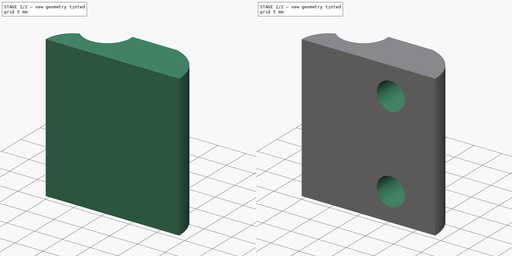
[diagram: build sequence overview — one tinted view per stage of 2, left to right]
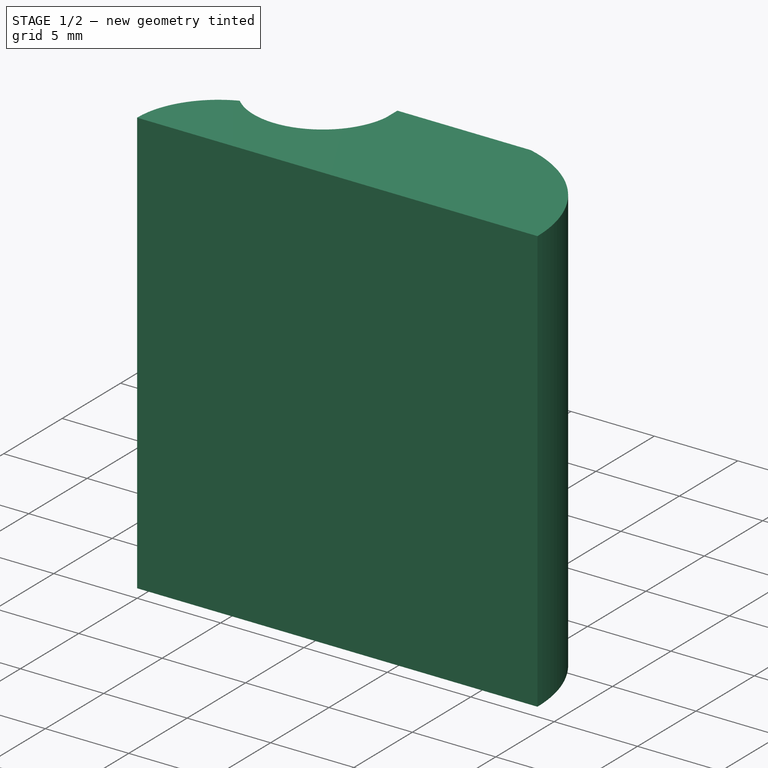
[diagram: stage 1 of 2 — iso view after this stage's code; geometry added in this stage tinted green]
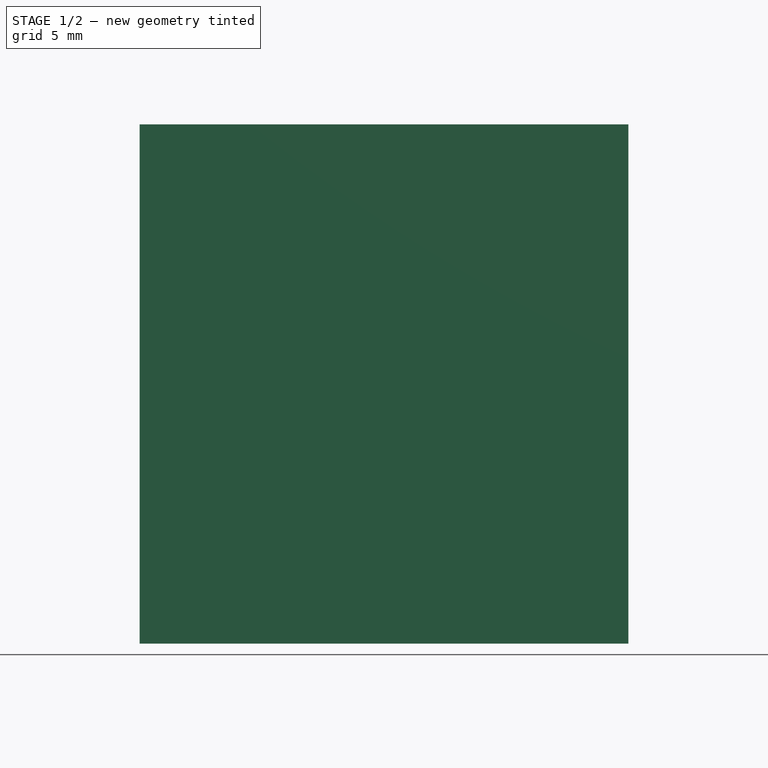
[diagram: stage 1 of 2 — front view after this stage's code; geometry added in this stage tinted green]
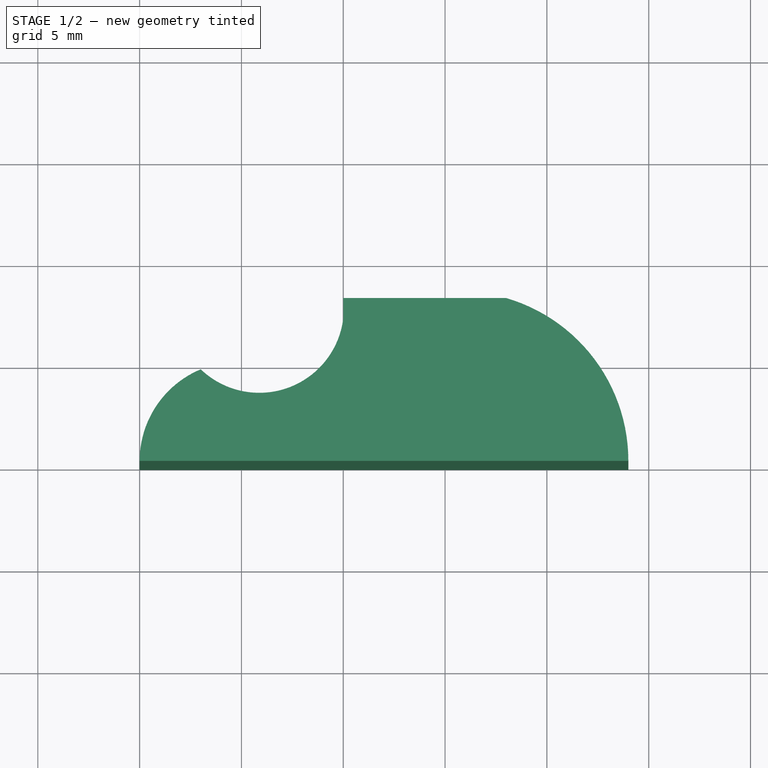
[diagram: stage 1 of 2 — top view after this stage's code; geometry added in this stage tinted green]
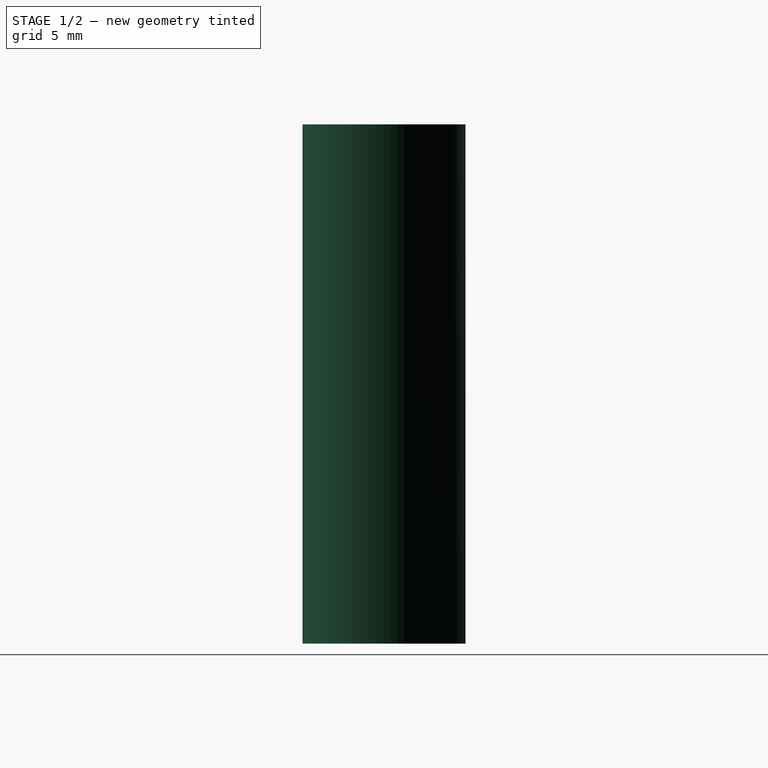
[diagram: stage 1 of 2 — right view after this stage's code; geometry added in this stage tinted green]
FCSTD DOCUMENT  (FreeCAD 0.16R5861 (Git))
Label: extruder_latch_v2.1
License: All rights reserved
LicenseURL: http://en.wikipedia.org/wiki/All_rights_reserved
objects: Sketcher::SketchObject×2, PartDesign::Pad×1, PartDesign::Pocket×1
note: 6 computed .brp shape members not serialized (recipe doc carries the construction recipe); baked Part::Feature solids carry a one-line shape summary decoded from their .brp

FEATURE [Sketcher::SketchObject] Sketch
  sketch-geometry (6):
    g0: LineSegment StartX=0 StartY=0 StartZ=0 EndX=24 EndY=0 EndZ=0
    g1: LineSegment StartX=10 StartY=8 StartZ=0 EndX=18 EndY=8 EndZ=0
    g2: ArcOfCircle CenterX=15.6667 CenterY=0 CenterZ=0 NormalX=0 NormalY=0 NormalZ=1 Radius=8.33333 StartAngle=0 EndAngle=1.287
    g3: ArcOfCircle CenterX=4.875 CenterY=0 CenterZ=0 NormalX=0 NormalY=0 NormalZ=1 Radius=4.875 StartAngle=1.96559 EndAngle=3.14159
    g4: LineSegment StartX=10 StartY=8 StartZ=0 EndX=10 EndY=7 EndZ=0
    g5: ArcOfCircle CenterX=5.875 CenterY=7.5 CenterZ=0 NormalX=0 NormalY=0 NormalZ=1 Radius=4.15519 StartAngle=3.94826 EndAngle=6.16256
  constraints (20):
    c: Coincident(g0,g-1)
    c: PointOnObject(g0,g-1)
    c: Horizontal(g1)
    c: Coincident(g2,g1)
    c: Coincident(g2,g0)
    c: Coincident(g3,g-1)
    c: DistanceY(g1,g0) = -8
    c: DistanceX(g-1,g0) = 24
    c: PointOnObject(g2,g0)
    c: DistanceX(g-1,g1) = 10
    c: DistanceX(g1,g1) = -8
    c: PointOnObject(g3,g0)
    c: DistanceY(g3,g3) = -4.5
    c: Coincident(g4,g1)
    c: Vertical(g4)
    c: Coincident(g5,g4)
    c: Coincident(g3,g5)
    c: DistanceX(g-1,g3) = 3
    c: DistanceY(g1,g4) = -1
    c: DistanceX(g5,g3) = -1
FEATURE [PartDesign::Pad] Pad
  Length = 25.5
  Length2 = 100
  Sketch = -> Sketch
  Type = 0
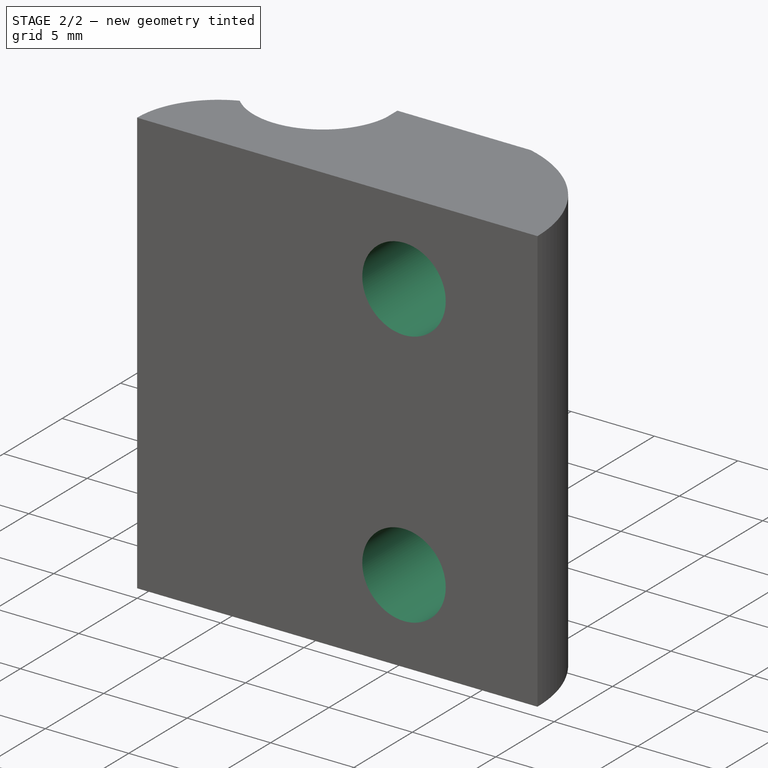
[diagram: stage 2 of 2 — iso view after this stage's code; geometry added in this stage tinted green]
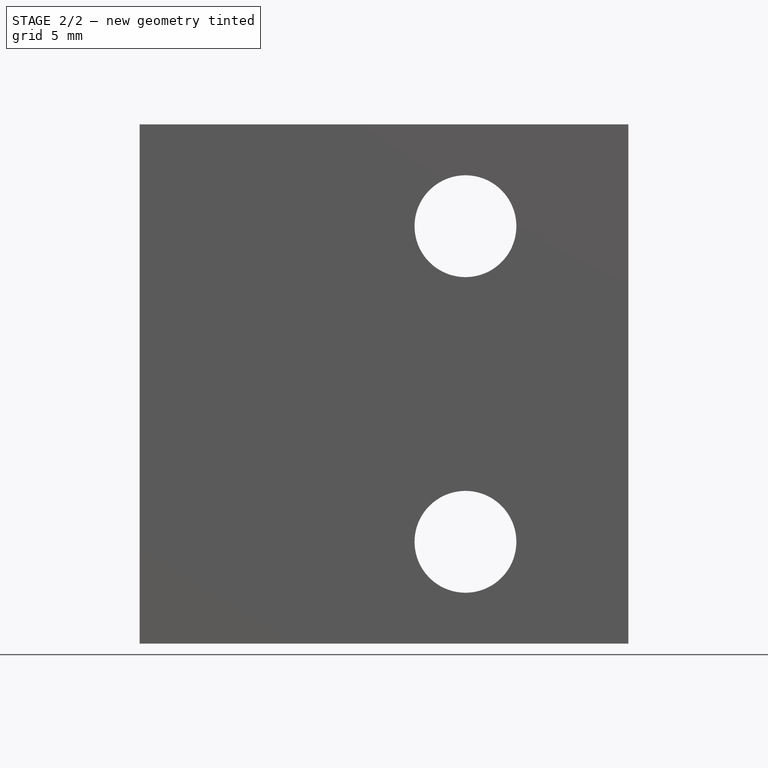
[diagram: stage 2 of 2 — front view after this stage's code; geometry added in this stage tinted green]
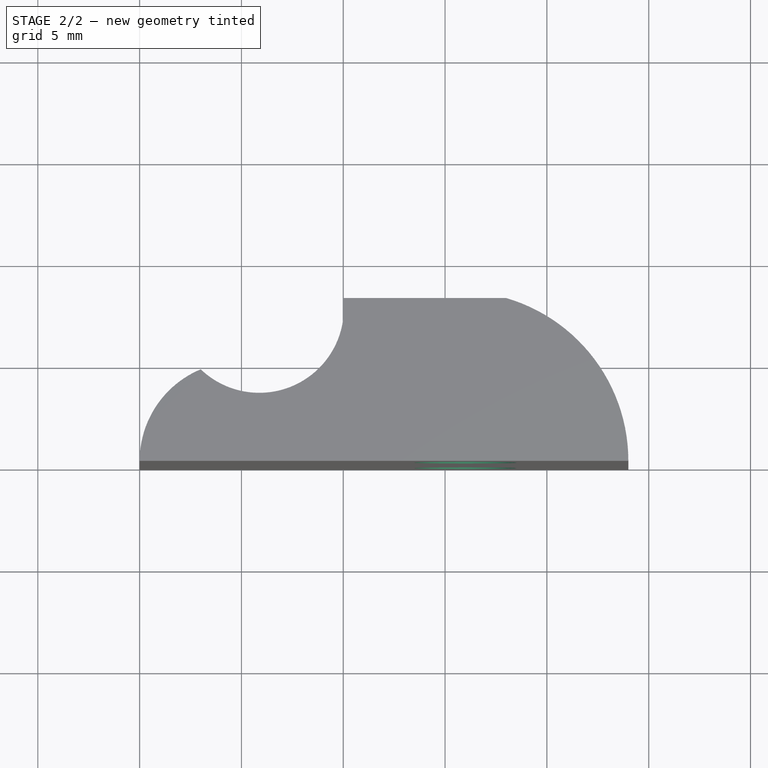
[diagram: stage 2 of 2 — top view after this stage's code; geometry added in this stage tinted green]
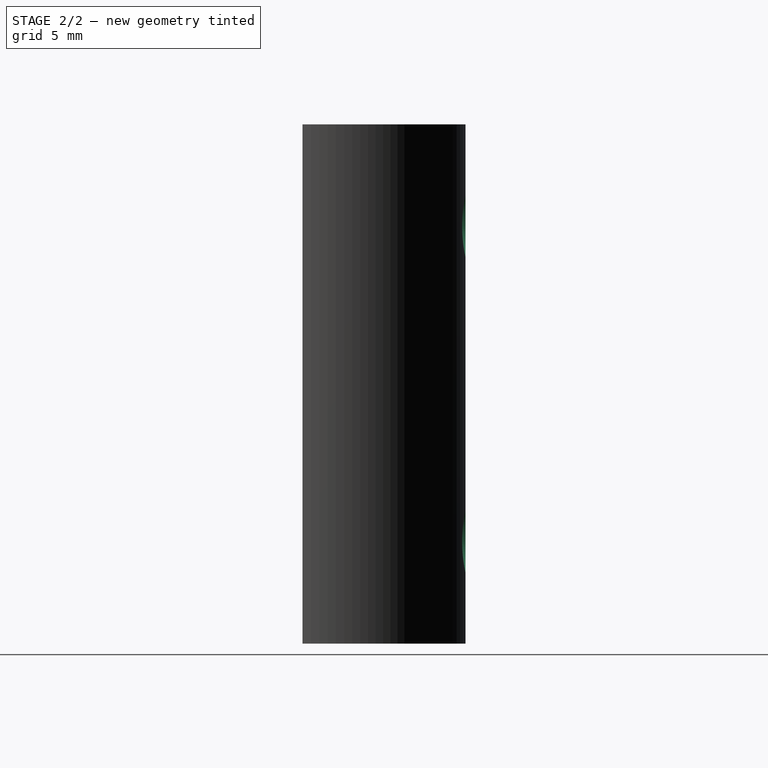
[diagram: stage 2 of 2 — right view after this stage's code; geometry added in this stage tinted green]
FEATURE [Sketcher::SketchObject] Sketch001
  ExternalGeometry = -> [Pad]
  Placement = pos=(0,0,0) rot=(1,0,0;1.5708rad)
  Support = -> Pad [Face2]
  sketch-geometry (2):
    g0: Circle CenterX=16 CenterY=5 CenterZ=0 NormalX=0 NormalY=0 NormalZ=1 Radius=2.5
    g1: Circle CenterX=16 CenterY=20.5 CenterZ=0 NormalX=0 NormalY=0 NormalZ=1 Radius=2.5
  constraints (6):
    c: DistanceY(g-3,g0) = 5
    c: DistanceX(g-3,g0) = -8
    c: Radius(g1) = 2.5
    c: Radius(g0) = 2.5
    c: DistanceY(g1,g-4) = 5
    c: DistanceX(g1,g-4) = 8
FEATURE [PartDesign::Pocket] Pocket
  Length = 5
  Sketch = -> Sketch001
  Type = 1
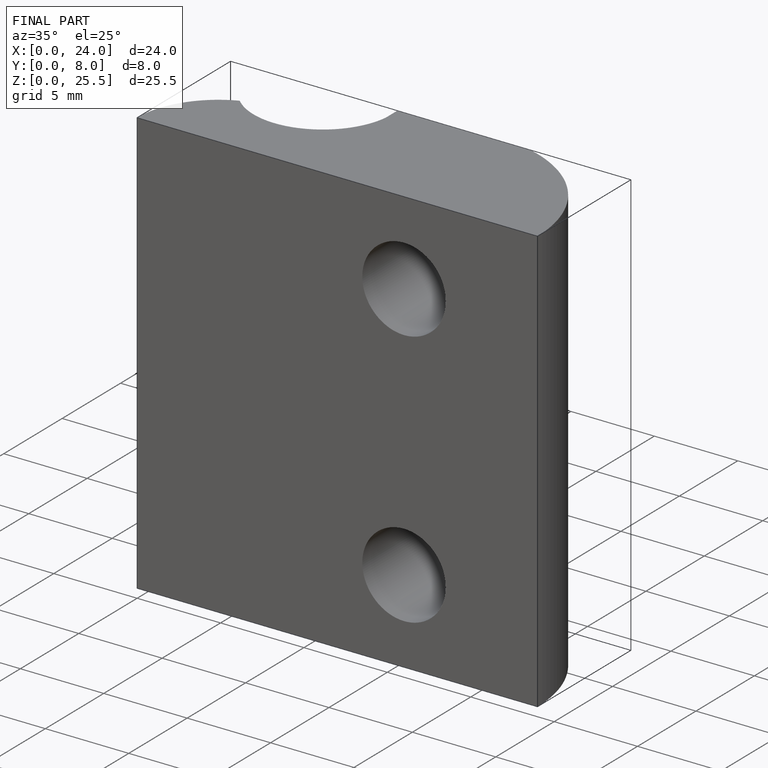
[diagram: finished part — iso view with bounding-box wireframe]
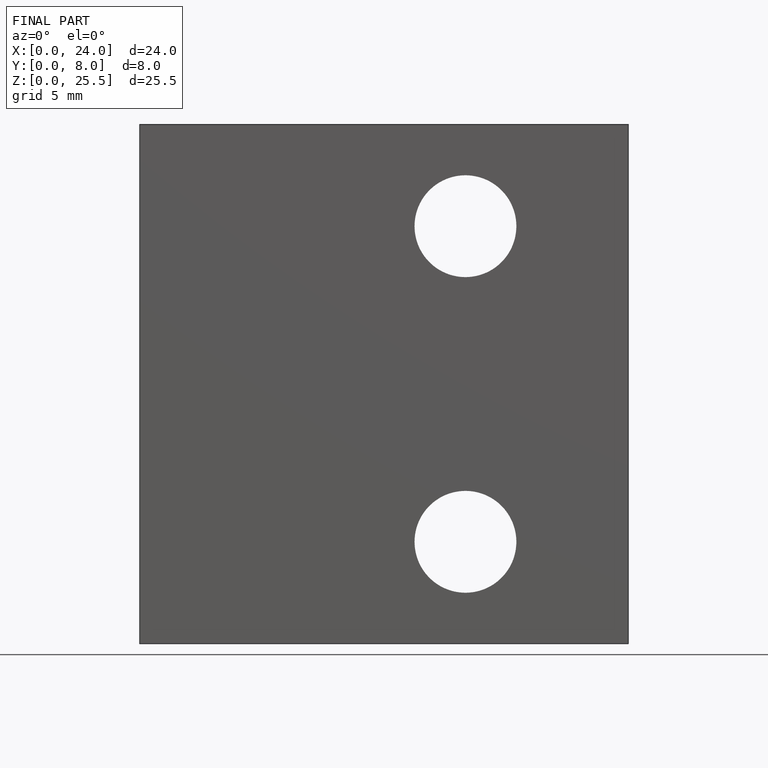
[diagram: finished part — front view with bounding-box wireframe]
